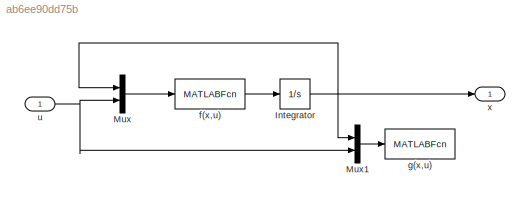
MODEL slx_ab6ee90dd75b
KIND model
CONFIG AbsTol = auto
CONFIG EnableMultiTasking = off
CONFIG FixedStep = auto
CONFIG MaxStep = auto
CONFIG MinStep = auto
CONFIG RelTol = 1e-3
CONFIG SampleTimeConstraint = Unconstrained
CONFIG Solver = VariableStepAuto
CONFIG SolverName = VariableStepAuto
CONFIG StartTime = 0.0
CONFIG StopTime = sim_params.T
BLOCK [Integrator] Integrator
  InitialCondition = sim_params.xi
  Ports = [1, 1]
BLOCK [Mux] Mux
  DisplayOption = bar
  Inputs = 2
  Ports = [2, 1]
BLOCK [Mux] Mux1
  Commented = on
  DisplayOption = bar
  Inputs = 2
  Ports = [2, 1]
BLOCK [MATLABFcn] f(x,u)
  MATLABFcn = model_function(u(1:sim_params.nx),u(sim_params.nx+1:end),sim_params.f)
  Ports = [1, 1]
BLOCK [MATLABFcn] g(x,u)
  Commented = on
  MATLABFcn = model_function(u(1:sim_params.nx),u(sim_params.nx+1:end),sim_params.f)
  Ports = [1, 1]
BLOCK [Inport] u
  IconDisplay = Port number
  PortDimensions = sim_params.nu
BLOCK [Outport] x
  IconDisplay = Port number
  PortDimensions = sim_params.ny
NET Integrator:1 -> Mux1:1, Mux:1, x:1
LINE Mux1:1 -> g(x,u):1
LINE Mux:1 -> f(x,u):1
LINE f(x,u):1 -> Integrator:1
NET u:1 -> Mux1:2, Mux:2
note: NET lines group one-source signal fan-out (src -> all destinations, sorted); 1:1 wires keep LINE
